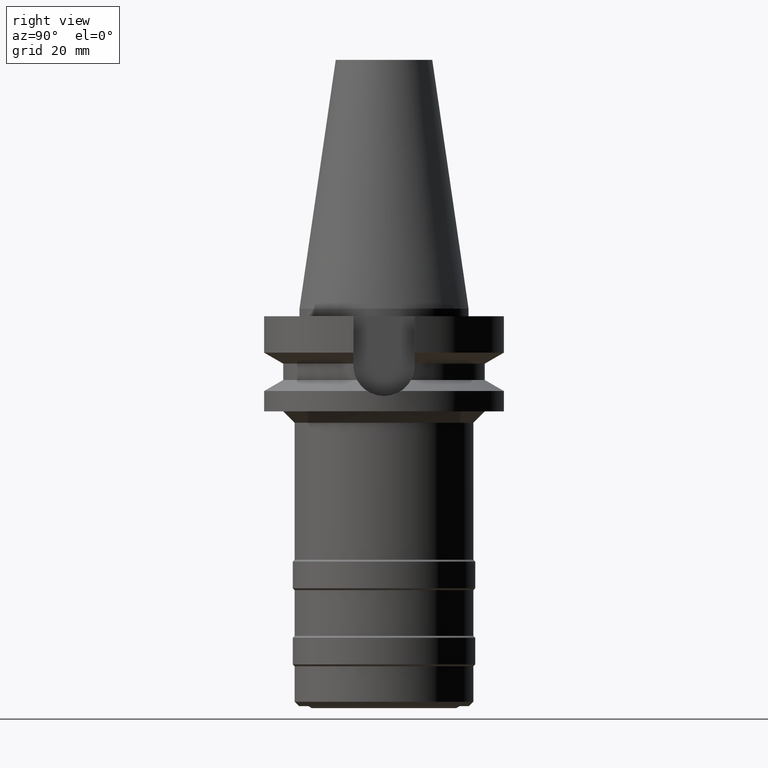
[diagram: clean part render]
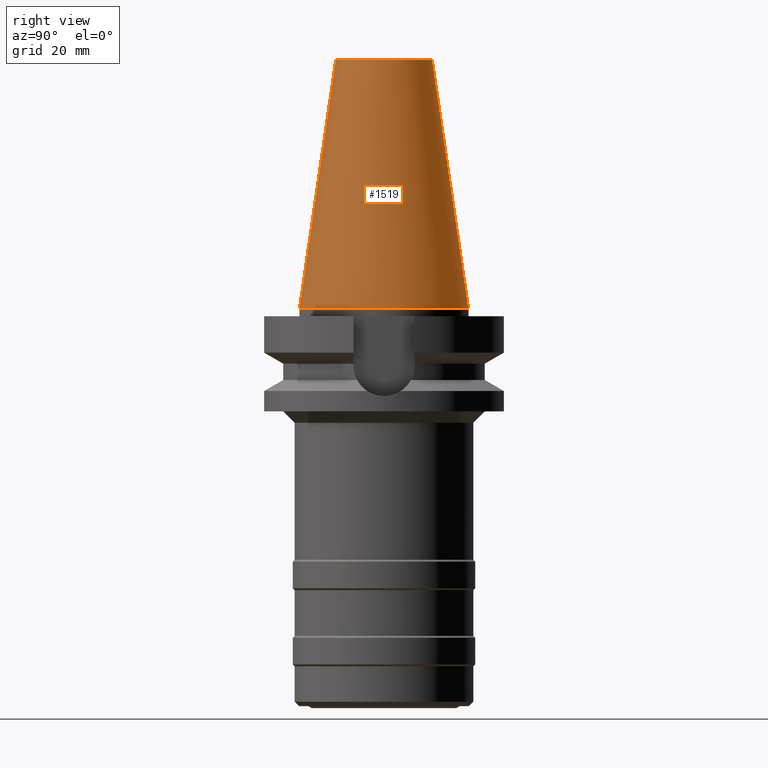
[diagram: same view with one face highlighted and labeled with its STEP entity id]
A machine part, right view. The second image highlights one B-rep face of the part: STEP entity #1519.
In plain terms, the highlighted conical surface has half-angle 8.297 deg.
Its self-contained STEP definition (entity closure, byte-faithful):
#26=CARTESIAN_POINT('',(0.E0,1.625106302469E-14,6.54E1));
#27=DIRECTION('',(0.E0,0.E0,-1.E0));
#28=DIRECTION('',(0.E0,1.E0,0.E0));
#29=AXIS2_PLACEMENT_3D('',#26,#27,#28);
#50=DIRECTION('',(0.E0,-1.443043893540E-1,-9.895333461856E-1));
#51=VECTOR('',#50,6.609175956738E1);
#52=CARTESIAN_POINT('',(0.E0,-1.268766899430E1,6.54E1));
#53=LINE('',#52,#51);
#65=DIRECTION('',(0.E0,1.443043893540E-1,-9.895333461856E-1));
#66=VECTOR('',#65,6.609175956738E1);
#67=CARTESIAN_POINT('',(0.E0,1.268766899430E1,6.54E1));
#68=LINE('',#67,#66);
#72=CARTESIAN_POINT('',(0.E0,1.625106302469E-14,2.842170943040E-14));
#73=DIRECTION('',(0.E0,0.E0,-1.E0));
#74=DIRECTION('',(0.E0,1.E0,0.E0));
#75=AXIS2_PLACEMENT_3D('',#72,#73,#74);
#1281=CARTESIAN_POINT('',(0.E0,-1.268766899430E1,6.54E1));
#1282=CARTESIAN_POINT('',(0.E0,1.268766899430E1,6.54E1));
#1283=VERTEX_POINT('',#1281);
#1284=VERTEX_POINT('',#1282);
#1462=CARTESIAN_POINT('',(0.E0,2.2225E1,6.394884621841E-14));
#1463=VERTEX_POINT('',#1462);
#1464=CARTESIAN_POINT('',(0.E0,-2.2225E1,6.394884621841E-14));
#1465=VERTEX_POINT('',#1464);
#1507=CARTESIAN_POINT('',(0.E0,1.625106302469E-14,3.27E1));
#1508=DIRECTION('',(0.E0,0.E0,-1.E0));
#1509=DIRECTION('',(0.E0,-1.E0,0.E0));
#1510=AXIS2_PLACEMENT_3D('',#1507,#1508,#1509);
#1511=CONICAL_SURFACE('',#1510,1.745633449715E1,8.297E0);
#1512=ORIENTED_EDGE('',*,*,#1497,.T.);
#1514=ORIENTED_EDGE('',*,*,#1513,.T.);
#1515=ORIENTED_EDGE('',*,*,#1500,.F.);
#1516=ORIENTED_EDGE('',*,*,#1481,.F.);
#1517=EDGE_LOOP('',(#1512,#1514,#1515,#1516));
#1518=FACE_OUTER_BOUND('',#1517,.F.);
#30=CIRCLE('',#29,1.268766899430E1);
#76=CIRCLE('',#75,2.2225E1);
#1481=EDGE_CURVE('',#1284,#1283,#30,.T.);
#1497=EDGE_CURVE('',#1284,#1463,#68,.T.);
#1500=EDGE_CURVE('',#1283,#1465,#53,.T.);
#1513=EDGE_CURVE('',#1463,#1465,#76,.T.);
#1519=ADVANCED_FACE('',(#1518),#1511,.T.);